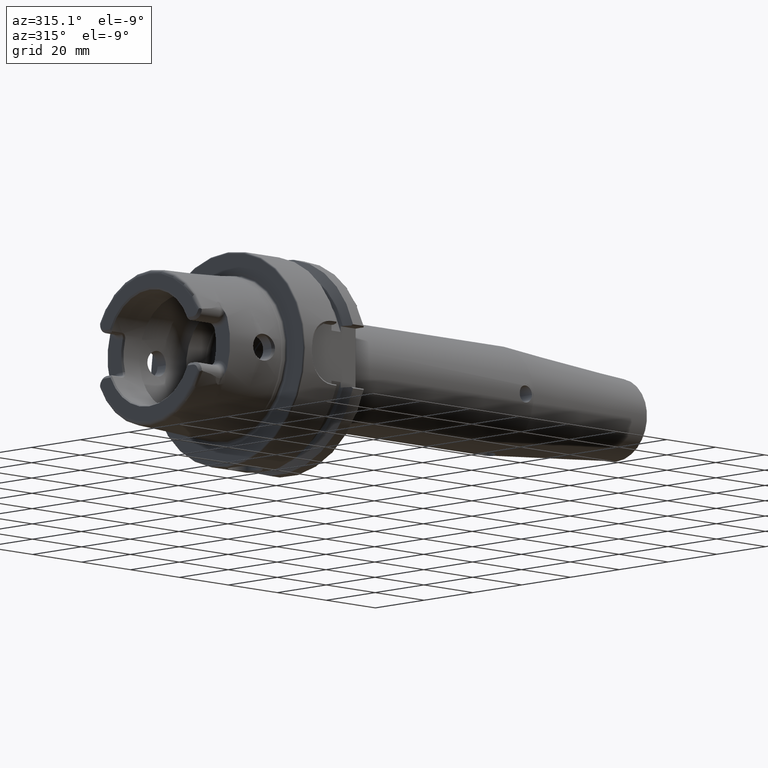
[diagram: clean part render]
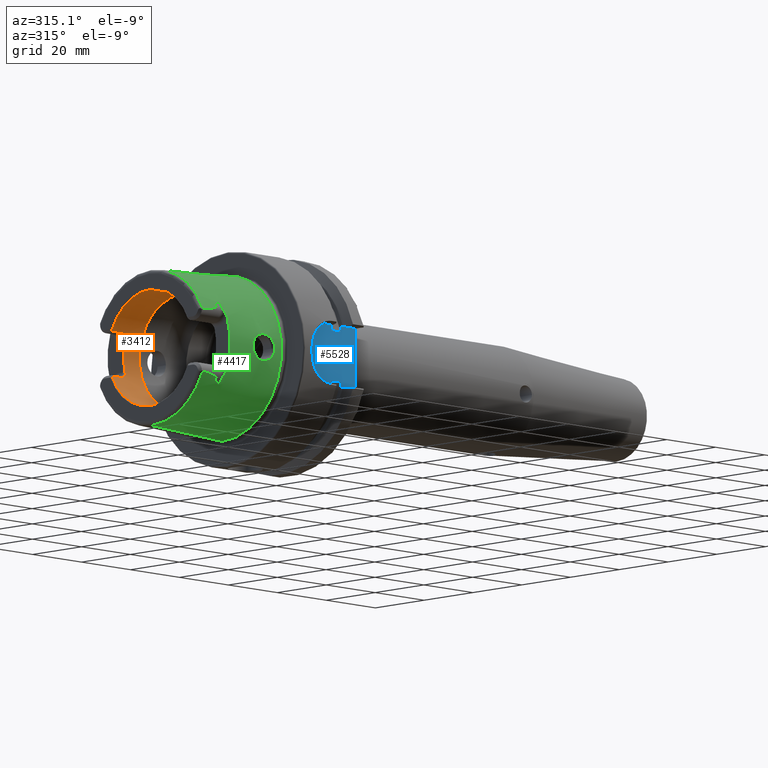
[diagram: same view with three faces highlighted in distinct colors, each labeled with its STEP entity id]
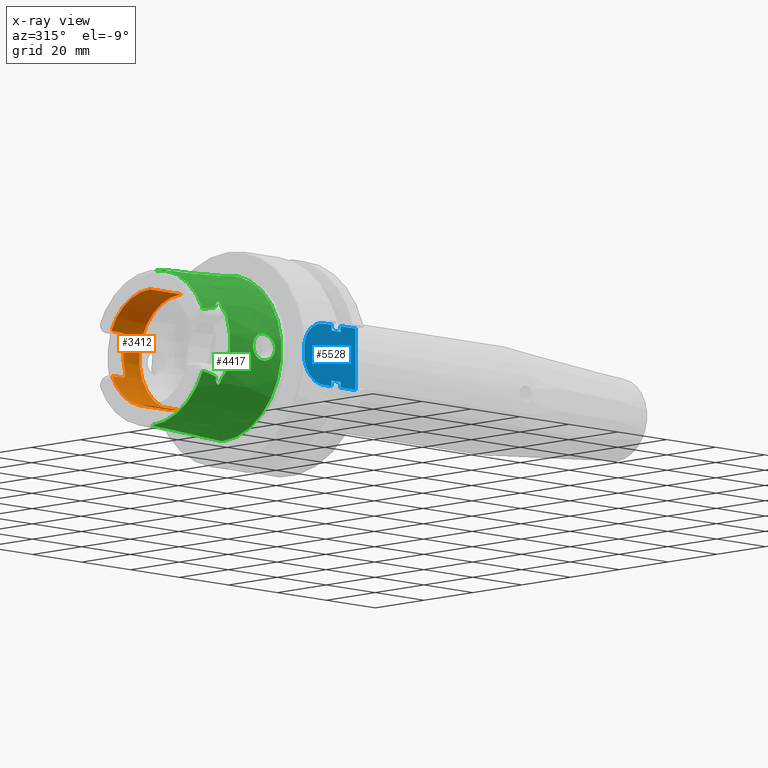
[diagram: x-ray of the same camera — body ghosted, the three highlighted faces saturated]
A machine part, auxiliary view with three faces highlighted in distinct colors.
The next image is the same camera in x-ray (body ghosted, the three faces saturated) — at least one of them is partly hidden behind the body in this view.
Their STEP definitions:

[orange] entity #3412 — the highlighted cylindrical surface (partial cylindrical patch) has radius 17 mm, axis along (1, 0, 0).
#201=CARTESIAN_POINT('',(-3.15E1,0.E0,0.E0));
#202=DIRECTION('',(1.E0,0.E0,0.E0));
#203=DIRECTION('',(0.E0,0.E0,-1.E0));
#204=AXIS2_PLACEMENT_3D('',#201,#202,#203);
#206=DIRECTION('',(-9.999997642097E-1,3.976700710576E-4,5.598563548373E-4));
#207=VECTOR('',#206,4.002685603136E0);
#208=CARTESIAN_POINT('',(-2.749999978847E1,1.567637420504E1,-6.576571430075E0));
#209=LINE('',#208,#207);
#210=CARTESIAN_POINT('',(-2.549999999940E1,1.635630433657E1,-4.633714324929E0));
#211=CARTESIAN_POINT('',(-2.549838850041E1,1.630679360409E1,-4.808479655499E0));
#212=CARTESIAN_POINT('',(-2.554707046576E1,1.620547029602E1,-5.145384202385E0));
#213=CARTESIAN_POINT('',(-2.575647311732E1,1.604187344112E1,-5.633522079891E0));
#214=CARTESIAN_POINT('',(-2.608994108892E1,1.589112188868E1,-6.043305482935E0));
#215=CARTESIAN_POINT('',(-2.651694574854E1,1.576949437732E1,-6.351881679064E0));
#216=CARTESIAN_POINT('',(-2.700696758268E1,1.569284892951E1,-6.537528371491E0));
#217=CARTESIAN_POINT('',(-2.733335586728E1,1.567596114112E1,-6.577556038045E0));
#218=CARTESIAN_POINT('',(-2.749999978847E1,1.567637420504E1,-6.576571430075E0));
#220=CARTESIAN_POINT('',(-2.55E1,0.E0,0.E0));
#221=DIRECTION('',(-1.E0,0.E0,0.E0));
#222=DIRECTION('',(0.E0,9.621355498715E-1,2.725714285714E-1));
#223=AXIS2_PLACEMENT_3D('',#220,#221,#222);
#225=CARTESIAN_POINT('',(-2.750000002224E1,1.567637420600E1,6.576571428506E0));
#226=CARTESIAN_POINT('',(-2.732896835151E1,1.567624121675E1,6.576888430951E0));
#227=CARTESIAN_POINT('',(-2.699663882967E1,1.569374904592E1,6.535388491254E0));
#228=CARTESIAN_POINT('',(-2.651171052891E1,1.577088547604E1,6.348415758134E0));
#229=CARTESIAN_POINT('',(-2.608726728569E1,1.589204732707E1,6.040889089363E0));
#230=CARTESIAN_POINT('',(-2.575332189348E1,1.604362909865E1,5.628584050237E0));
#231=CARTESIAN_POINT('',(-2.554596862809E1,1.620700186967E1,5.140480197641E0));
#232=CARTESIAN_POINT('',(-2.549838997837E1,1.630737693058E1,4.806420601545E0));
#233=CARTESIAN_POINT('',(-2.549999999982E1,1.635630435315E1,4.633714265951E0));
#235=DIRECTION('',(1.E0,1.348570648177E-11,-1.638572969568E-11));
#236=VECTOR('',#235,4.006571406330E0);
#237=CARTESIAN_POINT('',(-3.150657142857E1,1.567637420595E1,6.576571428571E0));
#238=LINE('',#237,#236);
#239=CARTESIAN_POINT('',(-3.150657142857E1,1.567637420595E1,6.576571428571E0));
#240=CARTESIAN_POINT('',(-3.157492591239E1,1.564769805039E1,6.644925912391E0));
#241=CARTESIAN_POINT('',(-3.164317732329E1,1.561853940455E1,6.713177323292E0));
#242=CARTESIAN_POINT('',(-3.171132486541E1,1.558889454291E1,6.781324865405E0));
#244=CARTESIAN_POINT('',(-3.171132486541E1,0.E0,0.E0));
#245=DIRECTION('',(1.E0,0.E0,0.E0));
#246=DIRECTION('',(0.E0,9.169937966415E-1,3.989014626709E-1));
#247=AXIS2_PLACEMENT_3D('',#244,#245,#246);
#249=CARTESIAN_POINT('',(-1.899602540378E1,0.E0,0.E0));
#250=DIRECTION('',(1.E0,0.E0,0.E0));
#251=DIRECTION('',(0.E0,0.E0,-1.E0));
#252=AXIS2_PLACEMENT_3D('',#249,#250,#251);
#277=DIRECTION('',(-1.E0,-6.903792289323E-9,3.402020068072E-11));
#278=VECTOR('',#277,1.250397459548E1);
#279=CARTESIAN_POINT('',(-1.899602540378E1,0.E0,-1.7E1));
#280=LINE('',#279,#278);
#286=DIRECTION('',(-1.E0,2.385283683508E-9,-3.366909743156E-11));
#287=VECTOR('',#286,1.271529946137E1);
#288=CARTESIAN_POINT('',(-1.899602540378E1,0.E0,1.7E1));
#289=LINE('',#288,#287);
#2707=CARTESIAN_POINT('',(-1.899602540378E1,0.E0,-1.7E1));
#2708=CARTESIAN_POINT('',(-1.899602540378E1,0.E0,1.7E1));
#2709=VERTEX_POINT('',#2707);
#2710=VERTEX_POINT('',#2708);
#2912=VERTEX_POINT('',#210);
#2913=VERTEX_POINT('',#218);
#2916=CARTESIAN_POINT('',(-2.55E1,1.635630434782E1,4.633714285714E0));
#2917=VERTEX_POINT('',#2916);
#2920=VERTEX_POINT('',#225);
#2922=CARTESIAN_POINT('',(-3.149999999926E1,-8.632484131625E-8,
-1.699999999957E1));
#2923=VERTEX_POINT('',#2922);
#2924=CARTESIAN_POINT('',(-3.171132486516E1,3.032959373375E-8,
1.699999999957E1));
#2925=VERTEX_POINT('',#2924);
#2978=VERTEX_POINT('',#239);
#2979=VERTEX_POINT('',#242);
#2992=CARTESIAN_POINT('',(-3.150268444781E1,1.567796595331E1,
-6.574330501104E0));
#2993=VERTEX_POINT('',#2992);
#3384=CARTESIAN_POINT('',(0.E0,0.E0,0.E0));
#3385=DIRECTION('',(1.E0,0.E0,0.E0));
#3386=DIRECTION('',(0.E0,0.E0,1.E0));
#3387=AXIS2_PLACEMENT_3D('',#3384,#3385,#3386);
#3388=CYLINDRICAL_SURFACE('',#3387,1.7E1);
#3390=ORIENTED_EDGE('',*,*,#3389,.T.);
#3392=ORIENTED_EDGE('',*,*,#3391,.F.);
#3394=ORIENTED_EDGE('',*,*,#3393,.F.);
#3395=ORIENTED_EDGE('',*,*,#3358,.F.);
#3397=ORIENTED_EDGE('',*,*,#3396,.F.);
#3399=ORIENTED_EDGE('',*,*,#3398,.F.);
#3401=ORIENTED_EDGE('',*,*,#3400,.T.);
#3403=ORIENTED_EDGE('',*,*,#3402,.T.);
#3405=ORIENTED_EDGE('',*,*,#3404,.F.);
#3407=ORIENTED_EDGE('',*,*,#3406,.F.);
#3409=ORIENTED_EDGE('',*,*,#3408,.T.);
#3410=EDGE_LOOP('',(#3390,#3392,#3394,#3395,#3397,#3399,#3401,#3403,#3405,#3407,
#3409));
#3411=FACE_OUTER_BOUND('',#3410,.F.);
#3412=ADVANCED_FACE('',(#3411),#3388,.F.);
#205=CIRCLE('',#204,1.7E1);
#219=B_SPLINE_CURVE_WITH_KNOTS('',3,(#210,#211,#212,#213,#214,#215,#216,#217,
#218),.UNSPECIFIED.,.F.,.F.,(4,1,1,1,1,1,4),(0.E0,1.666666666667E-1,
3.333333333333E-1,5.E-1,6.666666666667E-1,8.333333333333E-1,1.E0),
.UNSPECIFIED.);
#224=CIRCLE('',#223,1.7E1);
#234=B_SPLINE_CURVE_WITH_KNOTS('',3,(#225,#226,#227,#228,#229,#230,#231,#232,
#233),.UNSPECIFIED.,.F.,.F.,(4,1,1,1,1,1,4),(0.E0,1.666666666667E-1,
3.333333333333E-1,5.E-1,6.666666666667E-1,8.333333333333E-1,1.E0),
.UNSPECIFIED.);
#243=B_SPLINE_CURVE_WITH_KNOTS('',3,(#239,#240,#241,#242),.UNSPECIFIED.,.F.,.F.,
(4,4),(0.E0,1.E0),.UNSPECIFIED.);
#248=CIRCLE('',#247,1.7E1);
#253=CIRCLE('',#252,1.7E1);
#3358=EDGE_CURVE('',#2917,#2912,#224,.T.);
#3389=EDGE_CURVE('',#2923,#2993,#205,.T.);
#3391=EDGE_CURVE('',#2913,#2993,#209,.T.);
#3393=EDGE_CURVE('',#2912,#2913,#219,.T.);
#3396=EDGE_CURVE('',#2920,#2917,#234,.T.);
#3398=EDGE_CURVE('',#2978,#2920,#238,.T.);
#3400=EDGE_CURVE('',#2978,#2979,#243,.T.);
#3402=EDGE_CURVE('',#2979,#2925,#248,.T.);
#3404=EDGE_CURVE('',#2710,#2925,#289,.T.);
#3406=EDGE_CURVE('',#2709,#2710,#253,.T.);
#3408=EDGE_CURVE('',#2709,#2923,#280,.T.);

[blue] entity #5528 — the highlighted planar face has unit normal (0, 1, 0).
#828=DIRECTION('',(0.E0,0.E0,1.E0));
#829=VECTOR('',#828,1.8E1);
#830=CARTESIAN_POINT('',(2.6E1,-2.65E1,-9.E0));
#831=LINE('',#830,#829);
#2126=DIRECTION('',(0.E0,0.E0,1.E0));
#2127=VECTOR('',#2126,1.651530771650E0);
#2128=CARTESIAN_POINT('',(1.6125E1,-2.65E1,-9.E0));
#2129=LINE('',#2128,#2127);
#2158=DIRECTION('',(0.E0,0.E0,1.E0));
#2159=VECTOR('',#2158,1.651530771650E0);
#2160=CARTESIAN_POINT('',(1.6125E1,-2.65E1,7.348469228350E0));
#2161=LINE('',#2160,#2159);
#2166=CARTESIAN_POINT('',(1.3E1,-2.65E1,1.E0));
#2167=DIRECTION('',(0.E0,-1.E0,0.E0));
#2168=DIRECTION('',(0.E0,0.E0,1.E0));
#2169=AXIS2_PLACEMENT_3D('',#2166,#2167,#2168);
#2171=DIRECTION('',(1.E0,0.E0,0.E0));
#2172=VECTOR('',#2171,3.125E0);
#2173=CARTESIAN_POINT('',(1.3E1,-2.65E1,9.E0));
#2174=LINE('',#2173,#2172);
#2175=DIRECTION('',(1.E0,0.E0,0.E0));
#2176=VECTOR('',#2175,6.125E0);
#2177=CARTESIAN_POINT('',(1.9875E1,-2.65E1,9.E0));
#2178=LINE('',#2177,#2176);
#2179=DIRECTION('',(-1.E0,0.E0,0.E0));
#2180=VECTOR('',#2179,6.125E0);
#2181=CARTESIAN_POINT('',(2.6E1,-2.65E1,-9.E0));
#2182=LINE('',#2181,#2180);
#2183=DIRECTION('',(-1.E0,0.E0,0.E0));
#2184=VECTOR('',#2183,3.125E0);
#2185=CARTESIAN_POINT('',(1.6125E1,-2.65E1,-9.E0));
#2186=LINE('',#2185,#2184);
#2187=CARTESIAN_POINT('',(1.3E1,-2.65E1,-1.E0));
#2188=DIRECTION('',(0.E0,-1.E0,0.E0));
#2189=DIRECTION('',(-1.E0,0.E0,0.E0));
#2190=AXIS2_PLACEMENT_3D('',#2187,#2188,#2189);
#2192=DIRECTION('',(0.E0,0.E0,1.E0));
#2193=VECTOR('',#2192,2.E0);
#2194=CARTESIAN_POINT('',(5.E0,-2.65E1,-1.E0));
#2195=LINE('',#2194,#2193);
#2355=DIRECTION('',(0.E0,0.E0,1.E0));
#2356=VECTOR('',#2355,1.651530771650E0);
#2357=CARTESIAN_POINT('',(1.9875E1,-2.65E1,-9.E0));
#2358=LINE('',#2357,#2356);
#2379=DIRECTION('',(0.E0,0.E0,1.E0));
#2380=VECTOR('',#2379,1.651530771650E0);
#2381=CARTESIAN_POINT('',(1.9875E1,-2.65E1,7.348469228350E0));
#2382=LINE('',#2381,#2380);
#2513=DIRECTION('',(1.E0,0.E0,0.E0));
#2514=VECTOR('',#2513,3.75E0);
#2515=CARTESIAN_POINT('',(1.6125E1,-2.65E1,7.348469228350E0));
#2516=LINE('',#2515,#2514);
#2531=DIRECTION('',(1.E0,0.E0,0.E0));
#2532=VECTOR('',#2531,3.75E0);
#2533=CARTESIAN_POINT('',(1.6125E1,-2.65E1,-7.348469228350E0));
#2534=LINE('',#2533,#2532);
#2795=CARTESIAN_POINT('',(2.6E1,-2.65E1,-9.E0));
#2796=CARTESIAN_POINT('',(2.6E1,-2.65E1,9.E0));
#2797=VERTEX_POINT('',#2795);
#2798=VERTEX_POINT('',#2796);
#2799=CARTESIAN_POINT('',(1.6125E1,-2.65E1,-9.E0));
#2800=CARTESIAN_POINT('',(1.6125E1,-2.65E1,-7.348469228350E0));
#2801=VERTEX_POINT('',#2799);
#2802=VERTEX_POINT('',#2800);
#2803=CARTESIAN_POINT('',(1.6125E1,-2.65E1,7.348469228350E0));
#2804=CARTESIAN_POINT('',(1.6125E1,-2.65E1,9.E0));
#2805=VERTEX_POINT('',#2803);
#2806=VERTEX_POINT('',#2804);
#2811=CARTESIAN_POINT('',(1.9875E1,-2.65E1,7.348469228350E0));
#2812=VERTEX_POINT('',#2811);
#2813=CARTESIAN_POINT('',(1.9875E1,-2.65E1,-7.348469228350E0));
#2814=VERTEX_POINT('',#2813);
#2815=CARTESIAN_POINT('',(1.9875E1,-2.65E1,-9.E0));
#2816=VERTEX_POINT('',#2815);
#2817=CARTESIAN_POINT('',(1.9875E1,-2.65E1,9.E0));
#2818=VERTEX_POINT('',#2817);
#2823=CARTESIAN_POINT('',(1.3E1,-2.65E1,9.E0));
#2824=CARTESIAN_POINT('',(5.E0,-2.65E1,1.E0));
#2825=VERTEX_POINT('',#2823);
#2826=VERTEX_POINT('',#2824);
#2827=CARTESIAN_POINT('',(5.E0,-2.65E1,-1.E0));
#2828=CARTESIAN_POINT('',(1.3E1,-2.65E1,-9.E0));
#2829=VERTEX_POINT('',#2827);
#2830=VERTEX_POINT('',#2828);
#5498=CARTESIAN_POINT('',(0.E0,-2.65E1,0.E0));
#5499=DIRECTION('',(0.E0,1.E0,0.E0));
#5500=DIRECTION('',(-1.E0,0.E0,0.E0));
#5501=AXIS2_PLACEMENT_3D('',#5498,#5499,#5500);
#5502=PLANE('',#5501);
#5504=ORIENTED_EDGE('',*,*,#5503,.F.);
#5505=ORIENTED_EDGE('',*,*,#5431,.T.);
#5506=ORIENTED_EDGE('',*,*,#5491,.F.);
#5508=ORIENTED_EDGE('',*,*,#5507,.T.);
#5510=ORIENTED_EDGE('',*,*,#5509,.T.);
#5511=ORIENTED_EDGE('',*,*,#5446,.T.);
#5512=ORIENTED_EDGE('',*,*,#4048,.F.);
#5514=ORIENTED_EDGE('',*,*,#5513,.T.);
#5516=ORIENTED_EDGE('',*,*,#5515,.T.);
#5518=ORIENTED_EDGE('',*,*,#5517,.F.);
#5519=ORIENTED_EDGE('',*,*,#5461,.F.);
#5521=ORIENTED_EDGE('',*,*,#5520,.T.);
#5523=ORIENTED_EDGE('',*,*,#5522,.F.);
#5525=ORIENTED_EDGE('',*,*,#5524,.T.);
#5526=EDGE_LOOP('',(#5504,#5505,#5506,#5508,#5510,#5511,#5512,#5514,#5516,#5518,
#5519,#5521,#5523,#5525));
#5527=FACE_OUTER_BOUND('',#5526,.F.);
#5528=ADVANCED_FACE('',(#5527),#5502,.F.);
#2170=CIRCLE('',#2169,8.E0);
#2191=CIRCLE('',#2190,8.E0);
#4048=EDGE_CURVE('',#2797,#2798,#831,.T.);
#5431=EDGE_CURVE('',#2825,#2806,#2174,.T.);
#5446=EDGE_CURVE('',#2818,#2798,#2178,.T.);
#5461=EDGE_CURVE('',#2801,#2802,#2129,.T.);
#5491=EDGE_CURVE('',#2805,#2806,#2161,.T.);
#5503=EDGE_CURVE('',#2825,#2826,#2170,.T.);
#5507=EDGE_CURVE('',#2805,#2812,#2516,.T.);
#5509=EDGE_CURVE('',#2812,#2818,#2382,.T.);
#5513=EDGE_CURVE('',#2797,#2816,#2182,.T.);
#5515=EDGE_CURVE('',#2816,#2814,#2358,.T.);
#5517=EDGE_CURVE('',#2802,#2814,#2534,.T.);
#5520=EDGE_CURVE('',#2801,#2830,#2186,.T.);
#5522=EDGE_CURVE('',#2829,#2830,#2191,.T.);
#5524=EDGE_CURVE('',#2829,#2826,#2195,.T.);

[green] entity #4417 — the highlighted conical surface has half-angle 2.868 deg.
#1195=CARTESIAN_POINT('',(-3.086004333271E1,0.E0,0.E0));
#1196=DIRECTION('',(-1.E0,0.E0,0.E0));
#1197=DIRECTION('',(0.E0,0.E0,-1.E0));
#1198=AXIS2_PLACEMENT_3D('',#1195,#1196,#1197);
#1200=CARTESIAN_POINT('',(-3.086004333271E1,-2.086981840766E1,
-9.117659021249E0));
#1201=CARTESIAN_POINT('',(-3.065605186921E1,-2.087009790144E1,
-9.142546682600E0));
#1202=CARTESIAN_POINT('',(-3.026548971795E1,-2.087000011471E1,
-9.191475209956E0));
#1203=CARTESIAN_POINT('',(-2.973365321821E1,-2.086810691684E1,
-9.261644143754E0));
#1204=CARTESIAN_POINT('',(-2.925038551401E1,-2.086470072146E1,
-9.328786458642E0));
#1205=CARTESIAN_POINT('',(-2.880157988887E1,-2.085984936823E1,
-9.394516747198E0));
#1206=CARTESIAN_POINT('',(-2.838907941827E1,-2.085367010435E1,
-9.458361489324E0));
#1207=CARTESIAN_POINT('',(-2.802099682424E1,-2.084652664288E1,
-9.518574595620E0));
#1208=CARTESIAN_POINT('',(-2.767812179380E1,-2.083824707065E1,
-9.577892562152E0));
#1209=CARTESIAN_POINT('',(-2.735909724315E1,-2.082880059047E1,
-9.636540338401E0));
#1210=CARTESIAN_POINT('',(-2.707640752188E1,-2.081875776007E1,
-9.691819563709E0));
#1211=CARTESIAN_POINT('',(-2.681109569702E1,-2.080761261851E1,
-9.747101291047E0));
#1212=CARTESIAN_POINT('',(-2.656858158621E1,-2.079554827328E1,
-9.801340213004E0));
#1213=CARTESIAN_POINT('',(-2.635507856236E1,-2.078317780740E1,
-9.852543087215E0));
#1214=CARTESIAN_POINT('',(-2.614343140954E1,-2.076877229942E1,
-9.907525856621E0));
#1215=CARTESIAN_POINT('',(-2.596459737730E1,-2.075441286803E1,
-9.958294561477E0));
#1216=CARTESIAN_POINT('',(-2.579520406731E1,-2.073852104516E1,
-1.001089413177E1));
#1217=CARTESIAN_POINT('',(-2.563886330149E1,-2.072082009527E1,
-1.006541254284E1));
#1218=CARTESIAN_POINT('',(-2.551094126364E1,-2.070354791350E1,
-1.011550881391E1));
#1219=CARTESIAN_POINT('',(-2.537697699431E1,-2.068112228769E1,
-1.017650437323E1));
#1220=CARTESIAN_POINT('',(-2.527062763811E1,-2.065753992865E1,
-1.023629340194E1));
#1221=CARTESIAN_POINT('',(-2.518213991029E1,-2.063064078682E1,
-1.030035138509E1));
#1222=CARTESIAN_POINT('',(-2.511551447564E1,-2.059710280776E1,
-1.037470366444E1));
#1223=CARTESIAN_POINT('',(-2.509792629022E1,-2.057060375039E1,
-1.042902505095E1));
#1224=CARTESIAN_POINT('',(-2.509832943528E1,-2.055609878966E1,
-1.045749263925E1));
#1226=CARTESIAN_POINT('',(-2.509832943528E1,-2.055609878966E1,
-1.045749263925E1));
#1227=CARTESIAN_POINT('',(-2.509973452206E1,-2.050554446019E1,
-1.055671109738E1));
#1228=CARTESIAN_POINT('',(-2.507065476512E1,-2.040407944593E1,
-1.075584740029E1));
#1229=CARTESIAN_POINT('',(-2.492546543353E1,-2.024884407642E1,
-1.106051396733E1));
#1230=CARTESIAN_POINT('',(-2.468318136842E1,-2.009639154268E1,
-1.135971891163E1));
#1231=CARTESIAN_POINT('',(-2.435973964364E1,-1.995041487066E1,
-1.164621426170E1));
#1232=CARTESIAN_POINT('',(-2.396639941619E1,-1.981051447172E1,
-1.192078425439E1));
#1233=CARTESIAN_POINT('',(-2.366236291861E1,-1.972062082665E1,
-1.209721046657E1));
#1234=CARTESIAN_POINT('',(-2.35E1,-1.967619090430E1,-1.218440909893E1));
#1236=CARTESIAN_POINT('',(-2.35E1,-1.967619090430E1,1.218440909893E1));
#1237=CARTESIAN_POINT('',(-2.366273962512E1,-1.972072391079E1,
1.209700815256E1));
#1238=CARTESIAN_POINT('',(-2.396737226811E1,-1.981081058458E1,
1.192020310018E1));
#1239=CARTESIAN_POINT('',(-2.436114053628E1,-1.995096134710E1,
1.164514174130E1));
#1240=CARTESIAN_POINT('',(-2.468459443081E1,-2.009709754078E1,
1.135833331235E1));
#1241=CARTESIAN_POINT('',(-2.492685004054E1,-2.024992689999E1,
1.105838880642E1));
#1242=CARTESIAN_POINT('',(-2.507099685322E1,-2.040484030157E1,
1.075435413702E1));
#1243=CARTESIAN_POINT('',(-2.509972603515E1,-2.050584981529E1,
1.055611180425E1));
#1244=CARTESIAN_POINT('',(-2.509832943528E1,-2.055609878966E1,
1.045749263925E1));
#1246=CARTESIAN_POINT('',(-3.086004333271E1,-2.086981840766E1,
9.117659021249E0));
#1247=CARTESIAN_POINT('',(-3.065605186921E1,-2.087009790144E1,
9.142546682600E0));
#1248=CARTESIAN_POINT('',(-3.026548971795E1,-2.087000011471E1,
9.191475209956E0));
#1249=CARTESIAN_POINT('',(-2.973365321821E1,-2.086810691684E1,
9.261644143754E0));
#1250=CARTESIAN_POINT('',(-2.925038551401E1,-2.086470072146E1,
9.328786458642E0));
#1251=CARTESIAN_POINT('',(-2.880157988887E1,-2.085984936823E1,
9.394516747198E0));
#1252=CARTESIAN_POINT('',(-2.838907941827E1,-2.085367010435E1,
9.458361489324E0));
#1253=CARTESIAN_POINT('',(-2.802099682424E1,-2.084652664288E1,
9.518574595620E0));
#1254=CARTESIAN_POINT('',(-2.767812179380E1,-2.083824707065E1,
9.577892562152E0));
#1255=CARTESIAN_POINT('',(-2.735909724315E1,-2.082880059047E1,
9.636540338401E0));
#1256=CARTESIAN_POINT('',(-2.707640752188E1,-2.081875776007E1,
9.691819563709E0));
#1257=CARTESIAN_POINT('',(-2.681109569702E1,-2.080761261851E1,
9.747101291047E0));
#1258=CARTESIAN_POINT('',(-2.656858158621E1,-2.079554827328E1,
9.801340213004E0));
#1259=CARTESIAN_POINT('',(-2.635507856236E1,-2.078317780740E1,
9.852543087215E0));
#1260=CARTESIAN_POINT('',(-2.614343140954E1,-2.076877229942E1,
9.907525856621E0));
#1261=CARTESIAN_POINT('',(-2.596459737730E1,-2.075441286803E1,
9.958294561477E0));
#1262=CARTESIAN_POINT('',(-2.579520406731E1,-2.073852104516E1,
1.001089413177E1));
#1263=CARTESIAN_POINT('',(-2.563886330149E1,-2.072082009527E1,
1.006541254284E1));
#1264=CARTESIAN_POINT('',(-2.551094126364E1,-2.070354791350E1,
1.011550881391E1));
#1265=CARTESIAN_POINT('',(-2.537697699431E1,-2.068112228769E1,
1.017650437323E1));
#1266=CARTESIAN_POINT('',(-2.527062763811E1,-2.065753992865E1,
1.023629340194E1));
#1267=CARTESIAN_POINT('',(-2.518213991029E1,-2.063064078682E1,
1.030035138509E1));
#1268=CARTESIAN_POINT('',(-2.511551447564E1,-2.059710280776E1,
1.037470366444E1));
#1269=CARTESIAN_POINT('',(-2.509792629022E1,-2.057060375039E1,
1.042902505095E1));
#1270=CARTESIAN_POINT('',(-2.509832943528E1,-2.055609878966E1,
1.045749263925E1));
#1272=CARTESIAN_POINT('',(-3.086004333271E1,0.E0,0.E0));
#1273=DIRECTION('',(-1.E0,0.E0,0.E0));
#1274=DIRECTION('',(0.E0,-9.163649919573E-1,4.003438540993E-1));
#1275=AXIS2_PLACEMENT_3D('',#1272,#1273,#1274);
#1277=DIRECTION('',(-9.987474310439E-1,-1.043943068730E-10,-5.003567710383E-2));
#1278=VECTOR('',#1277,2.889623723507E1);
#1279=CARTESIAN_POINT('',(-2.000000627352E0,3.013169918385E-9,
2.422041252602E1));
#1280=LINE('',#1279,#1278);
#1281=CARTESIAN_POINT('',(-2.000078966146E0,0.E0,0.E0));
#1282=DIRECTION('',(-1.E0,0.E0,0.E0));
#1283=DIRECTION('',(0.E0,0.E0,-1.E0));
#1284=AXIS2_PLACEMENT_3D('',#1281,#1282,#1283);
#1286=DIRECTION('',(-9.987474310439E-1,1.043954869385E-10,5.003567710383E-2));
#1287=VECTOR('',#1286,2.889623723507E1);
#1288=CARTESIAN_POINT('',(-2.000000627352E0,-3.013171862045E-9,
-2.422041252602E1));
#1289=LINE('',#1288,#1287);
#1290=CARTESIAN_POINT('',(-4.550876813471E0,-2.409262908457E1,0.E0));
#1291=CARTESIAN_POINT('',(-4.550876813471E0,-2.409262908457E1,
-2.877967437564E-1));
#1292=CARTESIAN_POINT('',(-4.618402668122E0,-2.407904026989E1,
-8.400480277036E-1));
#1293=CARTESIAN_POINT('',(-4.894270861234E0,-2.402533951533E1,
-1.607621503292E0));
#1294=CARTESIAN_POINT('',(-5.311993211538E0,-2.394889792202E1,
-2.281051834978E0));
#1295=CARTESIAN_POINT('',(-5.862519901701E0,-2.385721878678E1,
-2.867738815602E0));
#1296=CARTESIAN_POINT('',(-6.525866941490E0,-2.376062455518E1,
-3.345027969698E0));
#1297=CARTESIAN_POINT('',(-7.283123635549E0,-2.366962568370E1,
-3.694964458018E0));
#1298=CARTESIAN_POINT('',(-8.068113572350E0,-2.359725545319E1,
-3.894815234736E0));
#1299=CARTESIAN_POINT('',(-8.870763704734E0,-2.354641057253E1,
-3.954593366443E0));
#1300=CARTESIAN_POINT('',(-9.668430299005E0,-2.351943467091E1,
-3.874115224399E0));
#1301=CARTESIAN_POINT('',(-1.044589907295E1,-2.351586499835E1,
-3.652697425224E0));
#1302=CARTESIAN_POINT('',(-1.117274859870E1,-2.353296697451E1,
-3.292217258769E0));
#1303=CARTESIAN_POINT('',(-1.181517087273E1,-2.356448626338E1,
-2.804326645060E0));
#1304=CARTESIAN_POINT('',(-1.234145757444E1,-2.360166761628E1,
-2.212677597337E0));
#1305=CARTESIAN_POINT('',(-1.273619031472E1,-2.363617974383E1,
-1.537866875102E0));
#1306=CARTESIAN_POINT('',(-1.298600958619E1,-2.366096015370E1,
-7.912407707895E-1));
#1307=CARTESIAN_POINT('',(-1.304439190524E1,-2.366711362744E1,
-2.691253192330E-1));
#1308=CARTESIAN_POINT('',(-1.304439190524E1,-2.366711362744E1,0.E0));
#1310=CARTESIAN_POINT('',(-1.304439190524E1,-2.366711362744E1,0.E0));
#1311=CARTESIAN_POINT('',(-1.304439190524E1,-2.366711362744E1,
2.703037479710E-1));
#1312=CARTESIAN_POINT('',(-1.298550406978E1,-2.366090648148E1,
7.943947598310E-1));
#1313=CARTESIAN_POINT('',(-1.273401403229E1,-2.363596973658E1,
1.542974157060E0));
#1314=CARTESIAN_POINT('',(-1.233736358375E1,-2.360133785537E1,
2.218343463292E0));
#1315=CARTESIAN_POINT('',(-1.181014932937E1,-2.356418192045E1,
2.808926516834E0));
#1316=CARTESIAN_POINT('',(-1.116702224785E1,-2.353275771571E1,
3.295736926792E0));
#1317=CARTESIAN_POINT('',(-1.043963924537E1,-2.351579580285E1,
3.655159652366E0));
#1318=CARTESIAN_POINT('',(-9.660475865824E0,-2.351957664188E1,
3.875690102308E0));
#1319=CARTESIAN_POINT('',(-8.862519366235E0,-2.354681821912E1,
3.954658875556E0));
#1320=CARTESIAN_POINT('',(-8.061144349956E0,-2.359781764260E1,
3.893566864752E0));
#1321=CARTESIAN_POINT('',(-7.278331496707E0,-2.367015194234E1,
3.693151756651E0));
#1322=CARTESIAN_POINT('',(-6.522034984199E0,-2.376113111253E1,
3.342852826910E0));
#1323=CARTESIAN_POINT('',(-5.857697434742E0,-2.385796493762E1,
2.863685030162E0));
#1324=CARTESIAN_POINT('',(-5.307304902799E0,-2.394972134456E1,
2.275049448592E0));
#1325=CARTESIAN_POINT('',(-4.890994728381E0,-2.402596524863E1,
1.600623477393E0));
#1326=CARTESIAN_POINT('',(-4.617587055612E0,-2.407920576001E1,
8.353714922673E-1));
#1327=CARTESIAN_POINT('',(-4.550876813471E0,-2.409262908457E1,
2.859699745206E-1));
#1328=CARTESIAN_POINT('',(-4.550876813471E0,-2.409262908457E1,0.E0));
#1572=CARTESIAN_POINT('',(-2.2E1,0.E0,0.E0));
#1573=DIRECTION('',(1.E0,0.E0,0.E0));
#1574=DIRECTION('',(0.E0,-9.478058907476E-1,3.188479158848E-1));
#1575=AXIS2_PLACEMENT_3D('',#1572,#1573,#1574);
#1596=CARTESIAN_POINT('',(-2.294092122685E1,-2.065240209098E1,
1.050656162214E1));
#1597=CARTESIAN_POINT('',(-2.294111150362E1,-2.070060050173E1,
1.041179857036E1));
#1598=CARTESIAN_POINT('',(-2.291155618279E1,-2.079810368142E1,
1.022013150145E1));
#1599=CARTESIAN_POINT('',(-2.280220882019E1,-2.094364655543E1,
9.931344787062E0));
#1600=CARTESIAN_POINT('',(-2.265591813207E1,-2.109587424253E1,
9.621813423491E0));
#1601=CARTESIAN_POINT('',(-2.248922631050E1,-2.125829077290E1,
9.278752706811E0));
#1602=CARTESIAN_POINT('',(-2.232290478409E1,-2.142677823370E1,
8.905105674939E0));
#1603=CARTESIAN_POINT('',(-2.216473996003E1,-2.160943095424E1,
8.475268221827E0));
#1604=CARTESIAN_POINT('',(-2.203800494772E1,-2.180688467124E1,
7.973400274330E0));
#1605=CARTESIAN_POINT('',(-2.2E1,-2.194020305932E1,7.600470353620E0));
#1606=CARTESIAN_POINT('',(-2.2E1,-2.200658163281E1,7.403153702532E0));
#1608=CARTESIAN_POINT('',(-2.35E1,-1.967619090430E1,1.218440909893E1));
#1609=CARTESIAN_POINT('',(-2.347055544183E1,-1.966813352615E1,
1.220022259394E1));
#1610=CARTESIAN_POINT('',(-2.341241754079E1,-1.966296524110E1,
1.221405587161E1));
#1611=CARTESIAN_POINT('',(-2.332691180913E1,-1.968819645611E1,
1.218153439148E1));
#1612=CARTESIAN_POINT('',(-2.326562915993E1,-1.972716128503E1,
1.212423440230E1));
#1613=CARTESIAN_POINT('',(-2.321457824419E1,-1.977282283767E1,
1.205455891523E1));
#1614=CARTESIAN_POINT('',(-2.317237092190E1,-1.982191871511E1,
1.197776914898E1));
#1615=CARTESIAN_POINT('',(-2.313405569140E1,-1.987650319484E1,
1.189074412018E1));
#1616=CARTESIAN_POINT('',(-2.309893102693E1,-1.993698168379E1,
1.179256148436E1));
#1617=CARTESIAN_POINT('',(-2.306619173465E1,-2.000452504011E1,
1.168092979418E1));
#1618=CARTESIAN_POINT('',(-2.303585792279E1,-2.007988592186E1,
1.155402609307E1));
#1619=CARTESIAN_POINT('',(-2.300835372165E1,-2.016335008984E1,
1.141062860755E1));
#1620=CARTESIAN_POINT('',(-2.298444209752E1,-2.025420771202E1,
1.125113528522E1));
#1621=CARTESIAN_POINT('',(-2.296476112948E1,-2.035248276247E1,
1.107452667370E1));
#1622=CARTESIAN_POINT('',(-2.295058450020E1,-2.045393521043E1,
1.088757448663E1));
#1623=CARTESIAN_POINT('',(-2.294234633039E1,-2.055556823074E1,
1.069534304728E1));
#1624=CARTESIAN_POINT('',(-2.294079499416E1,-2.062042648306E1,
1.056942896863E1));
#1625=CARTESIAN_POINT('',(-2.294092122685E1,-2.065240209098E1,
1.050656162214E1));
#1640=CARTESIAN_POINT('',(-2.2E1,-2.200658163281E1,-7.403153702532E0));
#1641=CARTESIAN_POINT('',(-2.2E1,-2.194041206251E1,-7.599849071691E0));
#1642=CARTESIAN_POINT('',(-2.203791204013E1,-2.180777367988E1,
-7.970791535206E0));
#1643=CARTESIAN_POINT('',(-2.216124332882E1,-2.161431807221E1,
-8.463121846466E0));
#1644=CARTESIAN_POINT('',(-2.231690544694E1,-2.143319349692E1,
-8.890437278107E0));
#1645=CARTESIAN_POINT('',(-2.248243264446E1,-2.126495040771E1,
-9.264341358459E0));
#1646=CARTESIAN_POINT('',(-2.264962455228E1,-2.110208200308E1,
-9.608988754332E0));
#1647=CARTESIAN_POINT('',(-2.279820546886E1,-2.094826699260E1,
-9.922113798161E0));
#1648=CARTESIAN_POINT('',(-2.291041611879E1,-2.080066788900E1,
-1.021509432093E1));
#1649=CARTESIAN_POINT('',(-2.294111504954E1,-2.070149870796E1,
-1.041003260418E1));
#1650=CARTESIAN_POINT('',(-2.294092122685E1,-2.065240209098E1,
-1.050656162214E1));
#1691=CARTESIAN_POINT('',(-2.294092122685E1,-2.065240209098E1,
-1.050656162214E1));
#1692=CARTESIAN_POINT('',(-2.294079811365E1,-2.062121667260E1,
-1.056787537441E1));
#1693=CARTESIAN_POINT('',(-2.294227405167E1,-2.055830300011E1,
-1.069004036703E1));
#1694=CARTESIAN_POINT('',(-2.294989885781E1,-2.046110801024E1,
-1.087409737897E1));
#1695=CARTESIAN_POINT('',(-2.296285463626E1,-2.036461322623E1,
-1.105234197859E1));
#1696=CARTESIAN_POINT('',(-2.298069488493E1,-2.027124871589E1,
-1.122074715811E1));
#1697=CARTESIAN_POINT('',(-2.300253013390E1,-2.018397484429E1,
-1.137466436651E1));
#1698=CARTESIAN_POINT('',(-2.302710385389E1,-2.010504782816E1,
-1.151103285332E1));
#1699=CARTESIAN_POINT('',(-2.305403844285E1,-2.003337429027E1,
-1.163257720670E1));
#1700=CARTESIAN_POINT('',(-2.308354622181E1,-1.996741257225E1,
-1.174248406628E1));
#1701=CARTESIAN_POINT('',(-2.311637460329E1,-1.990558888034E1,
-1.184374034503E1));
#1702=CARTESIAN_POINT('',(-2.315335701227E1,-1.984764484128E1,
-1.193695919151E1));
#1703=CARTESIAN_POINT('',(-2.319380614677E1,-1.979554781478E1,
-1.201922523601E1));
#1704=CARTESIAN_POINT('',(-2.324122285505E1,-1.974731655480E1,
-1.209372623764E1));
#1705=CARTESIAN_POINT('',(-2.329363990695E1,-1.970780502573E1,
-1.215297060557E1));
#1706=CARTESIAN_POINT('',(-2.335697965131E1,-1.967678487987E1,
-1.219707368641E1));
#1707=CARTESIAN_POINT('',(-2.343048235888E1,-1.966376869273E1,
-1.221104561254E1));
#1708=CARTESIAN_POINT('',(-2.347671290010E1,-1.966981848843E1,
-1.219691566928E1));
#1709=CARTESIAN_POINT('',(-2.35E1,-1.967619090430E1,-1.218440909893E1));
#2751=CARTESIAN_POINT('',(-2.000078966146E0,0.E0,-2.422042115892E1));
#2752=CARTESIAN_POINT('',(-2.000078966146E0,0.E0,2.422042115892E1));
#2753=VERTEX_POINT('',#2751);
#2754=VERTEX_POINT('',#2752);
#2866=CARTESIAN_POINT('',(-2.2E1,-2.200658163281E1,-7.403153702532E0));
#2868=VERTEX_POINT('',#2866);
#2869=CARTESIAN_POINT('',(-2.35E1,-1.967619090430E1,-1.218440909893E1));
#2870=VERTEX_POINT('',#2869);
#2872=CARTESIAN_POINT('',(-2.2E1,-2.200658163281E1,7.403153702532E0));
#2874=VERTEX_POINT('',#2872);
#2879=CARTESIAN_POINT('',(-2.35E1,-1.967619090430E1,1.218440909893E1));
#2880=VERTEX_POINT('',#2879);
#2881=VERTEX_POINT('',#1226);
#2882=CARTESIAN_POINT('',(-2.509832943528E1,-2.055609878966E1,
1.045749263925E1));
#2883=VERTEX_POINT('',#2882);
#2884=VERTEX_POINT('',#1625);
#2885=VERTEX_POINT('',#1691);
#2926=CARTESIAN_POINT('',(-3.086004333271E1,0.E0,-2.277456973022E1));
#2927=CARTESIAN_POINT('',(-3.086004333271E1,-2.086981840766E1,
-9.117659021249E0));
#2928=VERTEX_POINT('',#2926);
#2929=VERTEX_POINT('',#2927);
#2932=CARTESIAN_POINT('',(-3.086004333271E1,0.E0,2.277456973022E1));
#2934=VERTEX_POINT('',#2932);
#2936=CARTESIAN_POINT('',(-3.086004333271E1,-2.086981840766E1,
9.117659021249E0));
#2937=VERTEX_POINT('',#2936);
#3021=CARTESIAN_POINT('',(-4.550876813471E0,-2.409262908457E1,0.E0));
#3023=VERTEX_POINT('',#3021);
#3025=CARTESIAN_POINT('',(-1.304439190524E1,-2.366711362744E1,0.E0));
#3027=VERTEX_POINT('',#3025);
#4380=CARTESIAN_POINT('',(-1.643002229390E1,0.E0,0.E0));
#4381=DIRECTION('',(1.E0,0.E0,0.E0));
#4382=DIRECTION('',(0.E0,0.E0,1.E0));
#4383=AXIS2_PLACEMENT_3D('',#4380,#4381,#4382);
#4384=CONICAL_SURFACE('',#4383,2.349749739118E1,2.86805556E0);
#4385=ORIENTED_EDGE('',*,*,#3252,.T.);
#4387=ORIENTED_EDGE('',*,*,#4386,.T.);
#4389=ORIENTED_EDGE('',*,*,#4388,.T.);
#4391=ORIENTED_EDGE('',*,*,#4390,.F.);
#4393=ORIENTED_EDGE('',*,*,#4392,.F.);
#4395=ORIENTED_EDGE('',*,*,#4394,.F.);
#4397=ORIENTED_EDGE('',*,*,#4396,.F.);
#4399=ORIENTED_EDGE('',*,*,#4398,.F.);
#4401=ORIENTED_EDGE('',*,*,#4400,.T.);
#4403=ORIENTED_EDGE('',*,*,#4402,.F.);
#4405=ORIENTED_EDGE('',*,*,#4404,.T.);
#4406=ORIENTED_EDGE('',*,*,#3216,.F.);
#4407=ORIENTED_EDGE('',*,*,#4374,.F.);
#4408=ORIENTED_EDGE('',*,*,#3212,.T.);
#4409=EDGE_LOOP('',(#4385,#4387,#4389,#4391,#4393,#4395,#4397,#4399,#4401,#4403,
#4405,#4406,#4407,#4408));
#4410=FACE_OUTER_BOUND('',#4409,.F.);
#4412=ORIENTED_EDGE('',*,*,#4411,.F.);
#4414=ORIENTED_EDGE('',*,*,#4413,.F.);
#4415=EDGE_LOOP('',(#4412,#4414));
#4416=FACE_BOUND('',#4415,.F.);
#4417=ADVANCED_FACE('',(#4410,#4416),#4384,.T.);
#1199=CIRCLE('',#1198,2.277456973022E1);
#1225=B_SPLINE_CURVE_WITH_KNOTS('',3,(#1200,#1201,#1202,#1203,#1204,#1205,#1206,
#1207,#1208,#1209,#1210,#1211,#1212,#1213,#1214,#1215,#1216,#1217,#1218,#1219,
#1220,#1221,#1222,#1223,#1224),.UNSPECIFIED.,.F.,.F.,(4,1,1,1,1,1,1,1,1,1,1,1,1,
1,1,1,1,1,1,1,1,1,4),(0.E0,4.545454545455E-2,9.090909090909E-2,
1.363636363636E-1,1.818181818182E-1,2.272727272727E-1,2.727272727273E-1,
3.181818181818E-1,3.636363636364E-1,4.090909090909E-1,4.545454545455E-1,5.E-1,
5.454545454545E-1,5.909090909091E-1,6.363636363636E-1,6.818181818182E-1,
7.272727272727E-1,7.727272727273E-1,8.181818181818E-1,8.636363636364E-1,
9.090909090909E-1,9.545454545455E-1,1.E0),.UNSPECIFIED.);
#1235=B_SPLINE_CURVE_WITH_KNOTS('',3,(#1226,#1227,#1228,#1229,#1230,#1231,#1232,
#1233,#1234),.UNSPECIFIED.,.F.,.F.,(4,1,1,1,1,1,4),(0.E0,1.666666666667E-1,
3.333333333333E-1,5.E-1,6.666666666667E-1,8.333333333333E-1,1.E0),
.UNSPECIFIED.);
#1245=B_SPLINE_CURVE_WITH_KNOTS('',3,(#1236,#1237,#1238,#1239,#1240,#1241,#1242,
#1243,#1244),.UNSPECIFIED.,.F.,.F.,(4,1,1,1,1,1,4),(0.E0,1.666666666667E-1,
3.333333333333E-1,5.E-1,6.666666666667E-1,8.333333333333E-1,1.E0),
.UNSPECIFIED.);
#1271=B_SPLINE_CURVE_WITH_KNOTS('',3,(#1246,#1247,#1248,#1249,#1250,#1251,#1252,
#1253,#1254,#1255,#1256,#1257,#1258,#1259,#1260,#1261,#1262,#1263,#1264,#1265,
#1266,#1267,#1268,#1269,#1270),.UNSPECIFIED.,.F.,.F.,(4,1,1,1,1,1,1,1,1,1,1,1,1,
1,1,1,1,1,1,1,1,1,4),(0.E0,4.545454545455E-2,9.090909090909E-2,
1.363636363636E-1,1.818181818182E-1,2.272727272727E-1,2.727272727273E-1,
3.181818181818E-1,3.636363636364E-1,4.090909090909E-1,4.545454545455E-1,5.E-1,
5.454545454545E-1,5.909090909091E-1,6.363636363636E-1,6.818181818182E-1,
7.272727272727E-1,7.727272727273E-1,8.181818181818E-1,8.636363636364E-1,
9.090909090909E-1,9.545454545455E-1,1.E0),.UNSPECIFIED.);
#1276=CIRCLE('',#1275,2.277456973022E1);
#1285=CIRCLE('',#1284,2.422042115892E1);
#1309=B_SPLINE_CURVE_WITH_KNOTS('',3,(#1290,#1291,#1292,#1293,#1294,#1295,#1296,
#1297,#1298,#1299,#1300,#1301,#1302,#1303,#1304,#1305,#1306,#1307,#1308),
.UNSPECIFIED.,.F.,.F.,(4,1,1,1,1,1,1,1,1,1,1,1,1,1,1,1,4),(0.E0,6.25E-2,1.25E-1,
1.875E-1,2.5E-1,3.125E-1,3.75E-1,4.375E-1,5.E-1,5.625E-1,6.25E-1,6.875E-1,
7.5E-1,8.125E-1,8.75E-1,9.375E-1,1.E0),.UNSPECIFIED.);
#1329=B_SPLINE_CURVE_WITH_KNOTS('',3,(#1310,#1311,#1312,#1313,#1314,#1315,#1316,
#1317,#1318,#1319,#1320,#1321,#1322,#1323,#1324,#1325,#1326,#1327,#1328),
.UNSPECIFIED.,.F.,.F.,(4,1,1,1,1,1,1,1,1,1,1,1,1,1,1,1,4),(0.E0,6.25E-2,1.25E-1,
1.875E-1,2.5E-1,3.125E-1,3.75E-1,4.375E-1,5.E-1,5.625E-1,6.25E-1,6.875E-1,
7.5E-1,8.125E-1,8.75E-1,9.375E-1,1.E0),.UNSPECIFIED.);
#1576=CIRCLE('',#1575,2.321844783582E1);
#1607=B_SPLINE_CURVE_WITH_KNOTS('',3,(#1596,#1597,#1598,#1599,#1600,#1601,#1602,
#1603,#1604,#1605,#1606),.UNSPECIFIED.,.F.,.F.,(4,1,1,1,1,1,1,1,4),(0.E0,
1.25E-1,2.5E-1,3.75E-1,5.E-1,6.25E-1,7.5E-1,8.75E-1,1.E0),.UNSPECIFIED.);
#1626=B_SPLINE_CURVE_WITH_KNOTS('',3,(#1608,#1609,#1610,#1611,#1612,#1613,#1614,
#1615,#1616,#1617,#1618,#1619,#1620,#1621,#1622,#1623,#1624,#1625),
.UNSPECIFIED.,.F.,.F.,(4,1,1,1,1,1,1,1,1,1,1,1,1,1,1,4),(0.E0,6.666666666667E-2,
1.333333333333E-1,2.E-1,2.666666666667E-1,3.333333333333E-1,4.E-1,
4.666666666667E-1,5.333333333333E-1,6.E-1,6.666666666667E-1,7.333333333333E-1,
8.E-1,8.666666666667E-1,9.333333333333E-1,1.E0),.UNSPECIFIED.);
#1651=B_SPLINE_CURVE_WITH_KNOTS('',3,(#1640,#1641,#1642,#1643,#1644,#1645,#1646,
#1647,#1648,#1649,#1650),.UNSPECIFIED.,.F.,.F.,(4,1,1,1,1,1,1,1,4),(0.E0,
1.25E-1,2.5E-1,3.75E-1,5.E-1,6.25E-1,7.5E-1,8.75E-1,1.E0),.UNSPECIFIED.);
#1710=B_SPLINE_CURVE_WITH_KNOTS('',3,(#1691,#1692,#1693,#1694,#1695,#1696,#1697,
#1698,#1699,#1700,#1701,#1702,#1703,#1704,#1705,#1706,#1707,#1708,#1709),
.UNSPECIFIED.,.F.,.F.,(4,1,1,1,1,1,1,1,1,1,1,1,1,1,1,1,4),(0.E0,6.25E-2,1.25E-1,
1.875E-1,2.5E-1,3.125E-1,3.75E-1,4.375E-1,5.E-1,5.625E-1,6.25E-1,6.875E-1,
7.5E-1,8.125E-1,8.75E-1,9.375E-1,1.E0),.UNSPECIFIED.);
#3212=EDGE_CURVE('',#2753,#2928,#1289,.T.);
#3216=EDGE_CURVE('',#2754,#2934,#1280,.T.);
#3252=EDGE_CURVE('',#2928,#2929,#1199,.T.);
#4374=EDGE_CURVE('',#2753,#2754,#1285,.T.);
#4386=EDGE_CURVE('',#2929,#2881,#1225,.T.);
#4388=EDGE_CURVE('',#2881,#2870,#1235,.T.);
#4390=EDGE_CURVE('',#2885,#2870,#1710,.T.);
#4392=EDGE_CURVE('',#2868,#2885,#1651,.T.);
#4394=EDGE_CURVE('',#2874,#2868,#1576,.T.);
#4396=EDGE_CURVE('',#2884,#2874,#1607,.T.);
#4398=EDGE_CURVE('',#2880,#2884,#1626,.T.);
#4400=EDGE_CURVE('',#2880,#2883,#1245,.T.);
#4402=EDGE_CURVE('',#2937,#2883,#1271,.T.);
#4404=EDGE_CURVE('',#2937,#2934,#1276,.T.);
#4411=EDGE_CURVE('',#3023,#3027,#1309,.T.);
#4413=EDGE_CURVE('',#3027,#3023,#1329,.T.);